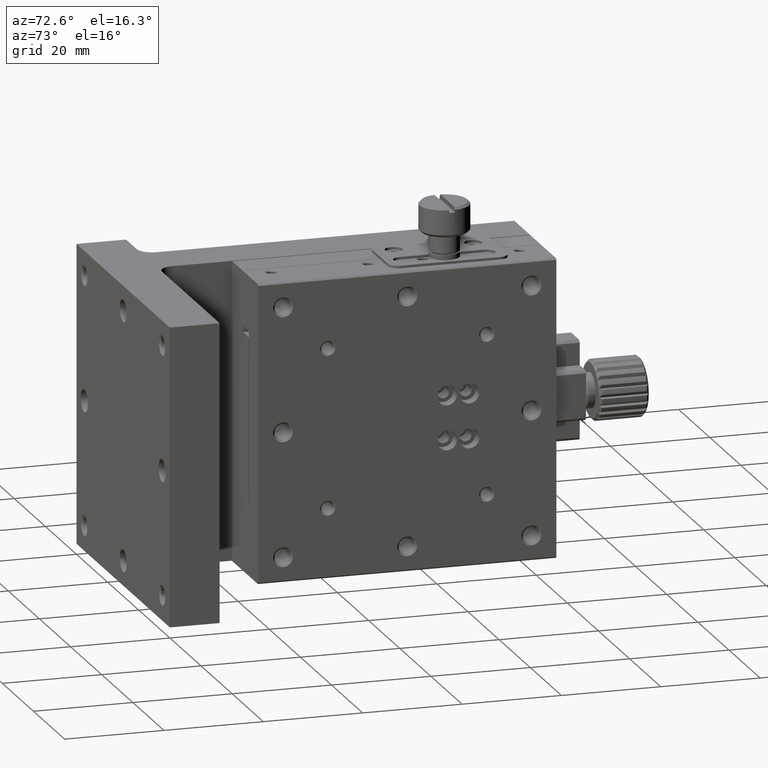
[diagram: clean part render]
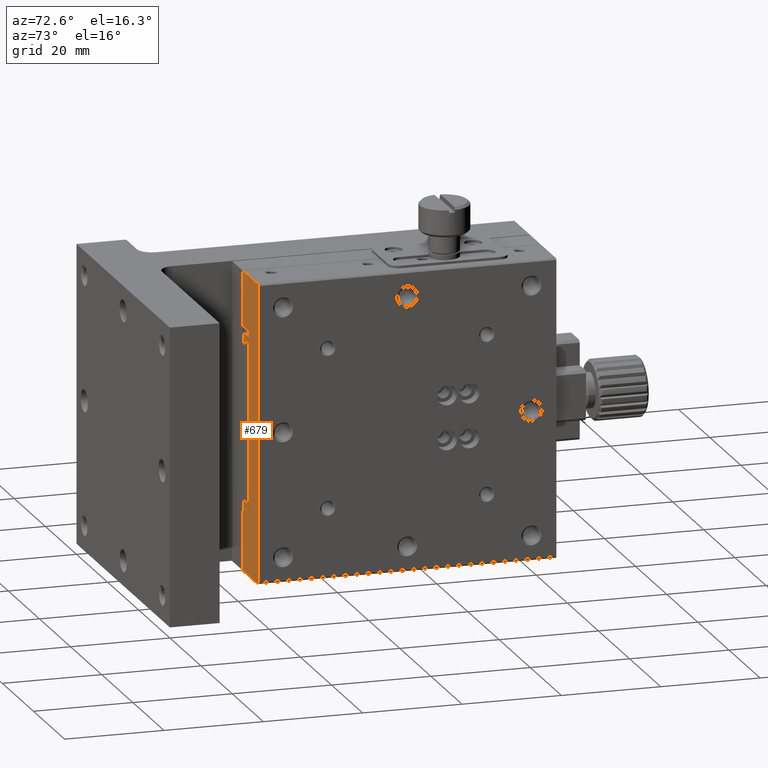
[diagram: same view with one face highlighted and labeled with its STEP entity id]
A machine part, auxiliary view. The second image highlights one B-rep face of the part: STEP entity #679.
In plain terms, the highlighted planar face has unit normal (0, -1, 0).
Its self-contained STEP definition (entity closure, byte-faithful):
#13 = VECTOR ( 'NONE', #9792, 1000.000000000000114 ) ;
#84 = CARTESIAN_POINT ( 'NONE',  ( 26.99999999999999645, 25.00000000000000711, 7.347880794884119933E-15 ) ) ;
#243 = CARTESIAN_POINT ( 'NONE',  ( 27.30000000000000782, 25.00000000000000711, -5.675066525144979984E-15 ) ) ;
#252 = VERTEX_POINT ( 'NONE', #8416 ) ;
#524 = VERTEX_POINT ( 'NONE', #1520 ) ;
#606 = DIRECTION ( 'NONE',  ( -0.000000000000000000, -0.000000000000000000, -1.000000000000000000 ) ) ;
#637 = ORIENTED_EDGE ( 'NONE', *, *, #5386, .T. ) ;
#671 = DIRECTION ( 'NONE',  ( -1.000000000000000000, -0.000000000000000000, -0.000000000000000000 ) ) ;
#679 = ADVANCED_FACE ( 'NONE', ( #3538 ), #4243, .T. ) ;
#691 = VECTOR ( 'NONE', #10472, 1000.000000000000000 ) ;
#747 = VECTOR ( 'NONE', #3391, 1000.000000000000000 ) ;
#785 = ORIENTED_EDGE ( 'NONE', *, *, #9434, .T. ) ;
#815 = CARTESIAN_POINT ( 'NONE',  ( 27.30000000000000782, 25.00000000000000711, -47.99999999999999289 ) ) ;
#1014 = DIRECTION ( 'NONE',  ( 0.000000000000000000, 0.000000000000000000, -1.000000000000000000 ) ) ;
#1161 = LINE ( 'NONE', #243, #10030 ) ;
#1228 = DIRECTION ( 'NONE',  ( 0.7071067811865699992, 0.000000000000000000, 0.7071067811865251462 ) ) ;
#1255 = CARTESIAN_POINT ( 'NONE',  ( 30.80000000000000782, 25.00000000000000711, 7.347880794884119933E-15 ) ) ;
#1292 = VERTEX_POINT ( 'NONE', #1858 ) ;
#1357 = LINE ( 'NONE', #7868, #1378 ) ;
#1378 = VECTOR ( 'NONE', #9657, 1000.000000000000000 ) ;
#1396 = VERTEX_POINT ( 'NONE', #9359 ) ;
#1505 = EDGE_CURVE ( 'NONE', #1292, #524, #3003, .T. ) ;
#1520 = CARTESIAN_POINT ( 'NONE',  ( 31.00000000000000000, 25.00000000000000711, -12.19999999999999218 ) ) ;
#1525 = EDGE_LOOP ( 'NONE', ( #4112, #2389, #7525, #6773, #2269, #9666, #8724, #637, #1836, #7754, #10049, #5631, #8656, #5304, #785, #6461, #4813, #10676, #3583, #8991, #5525, #6628 ) ) ;
#1542 = VECTOR ( 'NONE', #671, 1000.000000000000000 ) ;
#1568 = CARTESIAN_POINT ( 'NONE',  ( 36.69999999999997442, 25.00000000000000711, -59.99999999999999289 ) ) ;
#1617 = CARTESIAN_POINT ( 'NONE',  ( 36.99999999999999289, 25.00000000000000711, -59.69999999999999574 ) ) ;
#1624 = VERTEX_POINT ( 'NONE', #3110 ) ;
#1687 = CARTESIAN_POINT ( 'NONE',  ( 27.30000000000000782, 25.00000000000000711, -5.886171093439968154E-15 ) ) ;
#1744 = CARTESIAN_POINT ( 'NONE',  ( 27.30000000000000782, 25.00000000000000711, -14.82699999999999285 ) ) ;
#1836 = ORIENTED_EDGE ( 'NONE', *, *, #2485, .T. ) ;
#1839 = VERTEX_POINT ( 'NONE', #3801 ) ;
#1858 = CARTESIAN_POINT ( 'NONE',  ( 31.00000000000000000, 25.00000000000000711, -10.99999999999999289 ) ) ;
#1929 = DIRECTION ( 'NONE',  ( 0.000000000000000000, 0.000000000000000000, -1.000000000000000000 ) ) ;
#1994 = LINE ( 'NONE', #8453, #3972 ) ;
#2077 = CARTESIAN_POINT ( 'NONE',  ( 31.00000000000000000, 25.00000000000000711, -10.99999999999999289 ) ) ;
#2269 = ORIENTED_EDGE ( 'NONE', *, *, #7196, .T. ) ;
#2308 = LINE ( 'NONE', #6373, #1542 ) ;
#2376 = DIRECTION ( 'NONE',  ( 1.227396053628219999E-16, 0.000000000000000000, 1.000000000000000000 ) ) ;
#2389 = ORIENTED_EDGE ( 'NONE', *, *, #8789, .T. ) ;
#2468 = LINE ( 'NONE', #6642, #747 ) ;
#2485 = EDGE_CURVE ( 'NONE', #1396, #3108, #2468, .T. ) ;
#2513 = CARTESIAN_POINT ( 'NONE',  ( 37.00000000000000000, 25.00000000000000711, -6.800957556051679009E-15 ) ) ;
#2633 = VECTOR ( 'NONE', #606, 1000.000000000000000 ) ;
#2708 = DIRECTION ( 'NONE',  ( 0.000000000000000000, -1.000000000000000000, 0.000000000000000000 ) ) ;
#2729 = CARTESIAN_POINT ( 'NONE',  ( 30.80000000000000782, 25.00000000000000711, -43.00000000000000000 ) ) ;
#2830 = CARTESIAN_POINT ( 'NONE',  ( 37.00000000000000000, 25.00000000000000711, -10.99999999999999289 ) ) ;
#2941 = EDGE_CURVE ( 'NONE', #9185, #7032, #4745, .T. ) ;
#3003 = LINE ( 'NONE', #2077, #2633 ) ;
#3102 = EDGE_CURVE ( 'NONE', #1624, #7304, #5868, .T. ) ;
#3105 = VECTOR ( 'NONE', #1228, 1000.000000000000000 ) ;
#3108 = VERTEX_POINT ( 'NONE', #1744 ) ;
#3110 = CARTESIAN_POINT ( 'NONE',  ( 30.80000000000000782, 25.00000000000000711, -16.99999999999999289 ) ) ;
#3134 = VECTOR ( 'NONE', #1014, 1000.000000000000000 ) ;
#3156 = VERTEX_POINT ( 'NONE', #5378 ) ;
#3239 = CARTESIAN_POINT ( 'NONE',  ( 36.69999999999998863, 25.00000000000000711, -6.883899022246834298E-15 ) ) ;
#3280 = VERTEX_POINT ( 'NONE', #9967 ) ;
#3298 = DIRECTION ( 'NONE',  ( 0.000000000000000000, 0.000000000000000000, -1.000000000000000000 ) ) ;
#3303 = CARTESIAN_POINT ( 'NONE',  ( 26.99999999999999645, 25.00000000000000711, -0.3000000000000161982 ) ) ;
#3312 = CARTESIAN_POINT ( 'NONE',  ( 27.29999999999999716, 25.00000000000000711, -59.99999999999999289 ) ) ;
#3336 = AXIS2_PLACEMENT_3D ( 'NONE', #9226, #2708, #7533 ) ;
#3339 = LINE ( 'NONE', #2513, #8134 ) ;
#3391 = DIRECTION ( 'NONE',  ( 0.000000000000000000, 0.000000000000000000, -1.000000000000000000 ) ) ;
#3426 = DIRECTION ( 'NONE',  ( 1.000000000000000000, 0.000000000000000000, 0.000000000000000000 ) ) ;
#3538 = FACE_OUTER_BOUND ( 'NONE', #1525, .T. ) ;
#3541 = VECTOR ( 'NONE', #4849, 1000.000000000000000 ) ;
#3583 = ORIENTED_EDGE ( 'NONE', *, *, #6466, .T. ) ;
#3642 = DIRECTION ( 'NONE',  ( 0.7071067811865431318, -0.000000000000000000, -0.7071067811865520136 ) ) ;
#3744 = CARTESIAN_POINT ( 'NONE',  ( 30.80000000000000782, 25.00000000000000711, 7.347880794884119933E-15 ) ) ;
#3801 = CARTESIAN_POINT ( 'NONE',  ( 26.99999999999999645, 25.00000000000000711, -59.69999999999999574 ) ) ;
#3972 = VECTOR ( 'NONE', #3642, 999.9999999999998863 ) ;
#4112 = ORIENTED_EDGE ( 'NONE', *, *, #6038, .T. ) ;
#4243 = PLANE ( 'NONE',  #3336 ) ;
#4263 = DIRECTION ( 'NONE',  ( -1.000000000000000000, -0.000000000000000000, -0.000000000000000000 ) ) ;
#4302 = LINE ( 'NONE', #9347, #9503 ) ;
#4336 = VECTOR ( 'NONE', #3426, 1000.000000000000000 ) ;
#4545 = LINE ( 'NONE', #9319, #3105 ) ;
#4745 = LINE ( 'NONE', #7385, #3541 ) ;
#4774 = VERTEX_POINT ( 'NONE', #9646 ) ;
#4813 = ORIENTED_EDGE ( 'NONE', *, *, #7283, .T. ) ;
#4849 = DIRECTION ( 'NONE',  ( -1.000000000000000000, -0.000000000000000000, -0.000000000000000000 ) ) ;
#4866 = LINE ( 'NONE', #9901, #5674 ) ;
#4977 = EDGE_CURVE ( 'NONE', #7304, #3156, #6003, .T. ) ;
#5083 = DIRECTION ( 'NONE',  ( 0.8659960399471574588, 0.000000000000000000, 0.5000508562094871934 ) ) ;
#5108 = LINE ( 'NONE', #2830, #4336 ) ;
#5304 = ORIENTED_EDGE ( 'NONE', *, *, #7373, .T. ) ;
#5322 = DIRECTION ( 'NONE',  ( -1.000000000000000000, -0.000000000000000000, -0.000000000000000000 ) ) ;
#5348 = DIRECTION ( 'NONE',  ( 0.000000000000000000, 0.000000000000000000, -1.000000000000000000 ) ) ;
#5376 = LINE ( 'NONE', #1255, #691 ) ;
#5378 = CARTESIAN_POINT ( 'NONE',  ( 30.99999999999999289, 25.00000000000000711, -43.00000000000000000 ) ) ;
#5386 = EDGE_CURVE ( 'NONE', #524, #1396, #4302, .T. ) ;
#5525 = ORIENTED_EDGE ( 'NONE', *, *, #8196, .T. ) ;
#5631 = ORIENTED_EDGE ( 'NONE', *, *, #3102, .T. ) ;
#5674 = VECTOR ( 'NONE', #8879, 1000.000000000000000 ) ;
#5702 = VERTEX_POINT ( 'NONE', #3312 ) ;
#5733 = CARTESIAN_POINT ( 'NONE',  ( 27.30000000000000782, 25.00000000000000711, -14.82699999999999285 ) ) ;
#5751 = EDGE_CURVE ( 'NONE', #1839, #5702, #1994, .T. ) ;
#5868 = LINE ( 'NONE', #6732, #10463 ) ;
#5939 = DIRECTION ( 'NONE',  ( -0.7071067811865470176, -0.000000000000000000, 0.7071067811865480168 ) ) ;
#5952 = CARTESIAN_POINT ( 'NONE',  ( 31.00000000000000000, 25.00000000000000711, 7.347880794884119933E-15 ) ) ;
#6003 = LINE ( 'NONE', #5952, #8275 ) ;
#6038 = EDGE_CURVE ( 'NONE', #6543, #9671, #8237, .T. ) ;
#6373 = CARTESIAN_POINT ( 'NONE',  ( 30.99999999999998934, 25.00000000000000711, -43.00000000000000000 ) ) ;
#6461 = ORIENTED_EDGE ( 'NONE', *, *, #10284, .T. ) ;
#6466 = EDGE_CURVE ( 'NONE', #7032, #1839, #4866, .T. ) ;
#6482 = CARTESIAN_POINT ( 'NONE',  ( 30.80000000000000782, 25.00000000000000711, -47.19400000000000261 ) ) ;
#6543 = VERTEX_POINT ( 'NONE', #10673 ) ;
#6628 = ORIENTED_EDGE ( 'NONE', *, *, #8431, .T. ) ;
#6642 = CARTESIAN_POINT ( 'NONE',  ( 27.30000000000000782, 25.00000000000000711, 7.347880794884119933E-15 ) ) ;
#6732 = CARTESIAN_POINT ( 'NONE',  ( 30.80000000000000782, 25.00000000000000711, -16.99999999999999289 ) ) ;
#6773 = ORIENTED_EDGE ( 'NONE', *, *, #7245, .T. ) ;
#6810 = LINE ( 'NONE', #9371, #7589 ) ;
#6860 = CARTESIAN_POINT ( 'NONE',  ( 31.00000000000000000, 25.00000000000000711, -16.99999999999999289 ) ) ;
#7032 = VERTEX_POINT ( 'NONE', #8883 ) ;
#7083 = VECTOR ( 'NONE', #5939, 1000.000000000000000 ) ;
#7110 = EDGE_CURVE ( 'NONE', #3108, #4774, #7406, .T. ) ;
#7196 = EDGE_CURVE ( 'NONE', #8313, #9370, #7564, .T. ) ;
#7245 = EDGE_CURVE ( 'NONE', #9127, #8313, #1161, .T. ) ;
#7283 = EDGE_CURVE ( 'NONE', #252, #9185, #6810, .T. ) ;
#7304 = VERTEX_POINT ( 'NONE', #6860 ) ;
#7373 = EDGE_CURVE ( 'NONE', #3156, #8873, #2308, .T. ) ;
#7385 = CARTESIAN_POINT ( 'NONE',  ( 27.30000000000000782, 25.00000000000000711, -47.99999999999999289 ) ) ;
#7406 = LINE ( 'NONE', #5733, #9342 ) ;
#7501 = EDGE_CURVE ( 'NONE', #9824, #9127, #3339, .T. ) ;
#7525 = ORIENTED_EDGE ( 'NONE', *, *, #7501, .T. ) ;
#7533 = DIRECTION ( 'NONE',  ( 0.000000000000000000, 0.000000000000000000, -1.000000000000000000 ) ) ;
#7564 = LINE ( 'NONE', #84, #9850 ) ;
#7589 = VECTOR ( 'NONE', #5348, 1000.000000000000000 ) ;
#7754 = ORIENTED_EDGE ( 'NONE', *, *, #7110, .T. ) ;
#7868 = CARTESIAN_POINT ( 'NONE',  ( 37.00000000000000000, 25.00000000000000711, -59.99999999999999289 ) ) ;
#8087 = EDGE_CURVE ( 'NONE', #9370, #1292, #5108, .T. ) ;
#8134 = VECTOR ( 'NONE', #4263, 1000.000000000000000 ) ;
#8196 = EDGE_CURVE ( 'NONE', #5702, #10468, #1357, .T. ) ;
#8237 = LINE ( 'NONE', #1617, #10548 ) ;
#8275 = VECTOR ( 'NONE', #1929, 1000.000000000000000 ) ;
#8313 = VERTEX_POINT ( 'NONE', #3303 ) ;
#8325 = CARTESIAN_POINT ( 'NONE',  ( 37.00000000000000000, 25.00000000000000711, -0.3000000000000186962 ) ) ;
#8416 = CARTESIAN_POINT ( 'NONE',  ( 27.30000000000000426, 25.00000000000000711, -45.17300000000000182 ) ) ;
#8431 = EDGE_CURVE ( 'NONE', #10468, #6543, #4545, .T. ) ;
#8448 = LINE ( 'NONE', #3744, #3134 ) ;
#8453 = CARTESIAN_POINT ( 'NONE',  ( 26.99999999999999645, 25.00000000000000711, -59.69999999999999574 ) ) ;
#8578 = CARTESIAN_POINT ( 'NONE',  ( 26.99999999999999645, 25.00000000000000711, -10.99999999999999289 ) ) ;
#8656 = ORIENTED_EDGE ( 'NONE', *, *, #4977, .T. ) ;
#8724 = ORIENTED_EDGE ( 'NONE', *, *, #1505, .T. ) ;
#8789 = EDGE_CURVE ( 'NONE', #9671, #9824, #10063, .T. ) ;
#8873 = VERTEX_POINT ( 'NONE', #2729 ) ;
#8879 = DIRECTION ( 'NONE',  ( 0.000000000000000000, 0.000000000000000000, -1.000000000000000000 ) ) ;
#8883 = CARTESIAN_POINT ( 'NONE',  ( 26.99999999999999645, 25.00000000000000711, -47.99999999999999289 ) ) ;
#8969 = LINE ( 'NONE', #6482, #13 ) ;
#8991 = ORIENTED_EDGE ( 'NONE', *, *, #5751, .T. ) ;
#9127 = VERTEX_POINT ( 'NONE', #1687 ) ;
#9181 = DIRECTION ( 'NONE',  ( 1.000000000000000000, 0.000000000000000000, 0.000000000000000000 ) ) ;
#9185 = VERTEX_POINT ( 'NONE', #815 ) ;
#9226 = CARTESIAN_POINT ( 'NONE',  ( 37.00000000000000000, 25.00000000000000711, 7.347880794884119933E-15 ) ) ;
#9319 = CARTESIAN_POINT ( 'NONE',  ( 36.69999999999997442, 25.00000000000000711, -59.99999999999999289 ) ) ;
#9342 = VECTOR ( 'NONE', #5083, 1000.000000000000114 ) ;
#9347 = CARTESIAN_POINT ( 'NONE',  ( 37.00000000000000000, 25.00000000000000711, -12.19999999999999218 ) ) ;
#9359 = CARTESIAN_POINT ( 'NONE',  ( 27.30000000000000782, 25.00000000000000711, -12.19999999999999218 ) ) ;
#9370 = VERTEX_POINT ( 'NONE', #8578 ) ;
#9371 = CARTESIAN_POINT ( 'NONE',  ( 27.30000000000000782, 25.00000000000000711, 7.347880794884119933E-15 ) ) ;
#9434 = EDGE_CURVE ( 'NONE', #8873, #3280, #5376, .T. ) ;
#9503 = VECTOR ( 'NONE', #5322, 1000.000000000000000 ) ;
#9532 = DIRECTION ( 'NONE',  ( -0.7071067811865480168, -0.000000000000000000, -0.7071067811865470176 ) ) ;
#9568 = EDGE_CURVE ( 'NONE', #4774, #1624, #8448, .T. ) ;
#9643 = CARTESIAN_POINT ( 'NONE',  ( 36.99999999999999289, 25.00000000000000711, -0.3000000000000117018 ) ) ;
#9646 = CARTESIAN_POINT ( 'NONE',  ( 30.80000000000000426, 25.00000000000000711, -12.80599999999998673 ) ) ;
#9657 = DIRECTION ( 'NONE',  ( 1.000000000000000000, 0.000000000000000000, 0.000000000000000000 ) ) ;
#9666 = ORIENTED_EDGE ( 'NONE', *, *, #8087, .T. ) ;
#9671 = VERTEX_POINT ( 'NONE', #9643 ) ;
#9792 = DIRECTION ( 'NONE',  ( -0.8659960399471572368, 0.000000000000000000, 0.5000508562094875264 ) ) ;
#9824 = VERTEX_POINT ( 'NONE', #3239 ) ;
#9850 = VECTOR ( 'NONE', #3298, 1000.000000000000000 ) ;
#9901 = CARTESIAN_POINT ( 'NONE',  ( 26.99999999999999645, 25.00000000000000711, 7.347880794884119933E-15 ) ) ;
#9967 = CARTESIAN_POINT ( 'NONE',  ( 30.80000000000000782, 25.00000000000000711, -47.19400000000000972 ) ) ;
#10030 = VECTOR ( 'NONE', #9532, 1000.000000000000000 ) ;
#10049 = ORIENTED_EDGE ( 'NONE', *, *, #9568, .T. ) ;
#10063 = LINE ( 'NONE', #8325, #7083 ) ;
#10284 = EDGE_CURVE ( 'NONE', #3280, #252, #8969, .T. ) ;
#10463 = VECTOR ( 'NONE', #9181, 1000.000000000000000 ) ;
#10468 = VERTEX_POINT ( 'NONE', #1568 ) ;
#10472 = DIRECTION ( 'NONE',  ( 0.000000000000000000, 0.000000000000000000, -1.000000000000000000 ) ) ;
#10548 = VECTOR ( 'NONE', #2376, 1000.000000000000000 ) ;
#10673 = CARTESIAN_POINT ( 'NONE',  ( 36.99999999999998579, 25.00000000000000711, -59.69999999999999574 ) ) ;
#10676 = ORIENTED_EDGE ( 'NONE', *, *, #2941, .T. ) ;